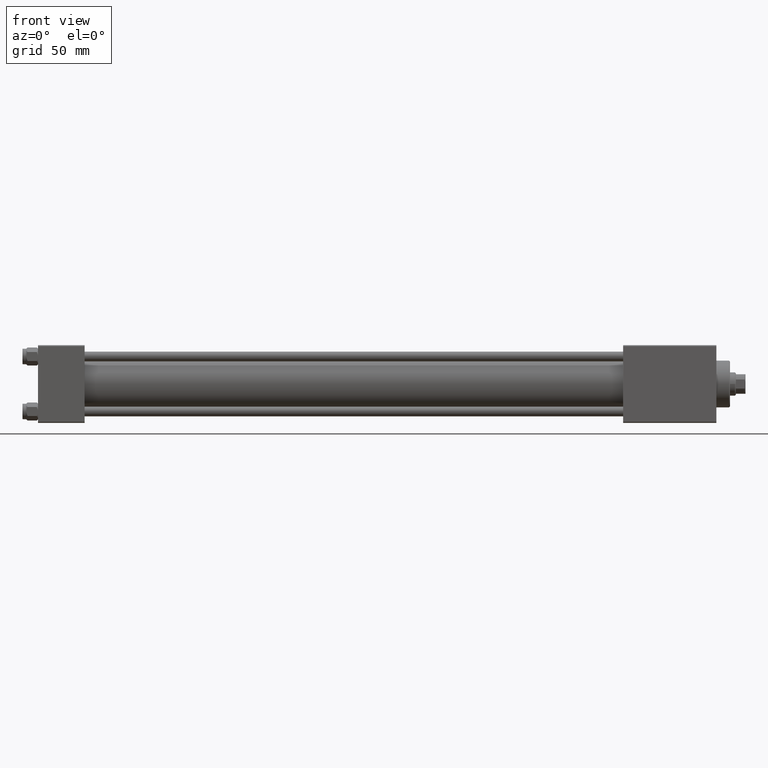
[diagram: clean part render]
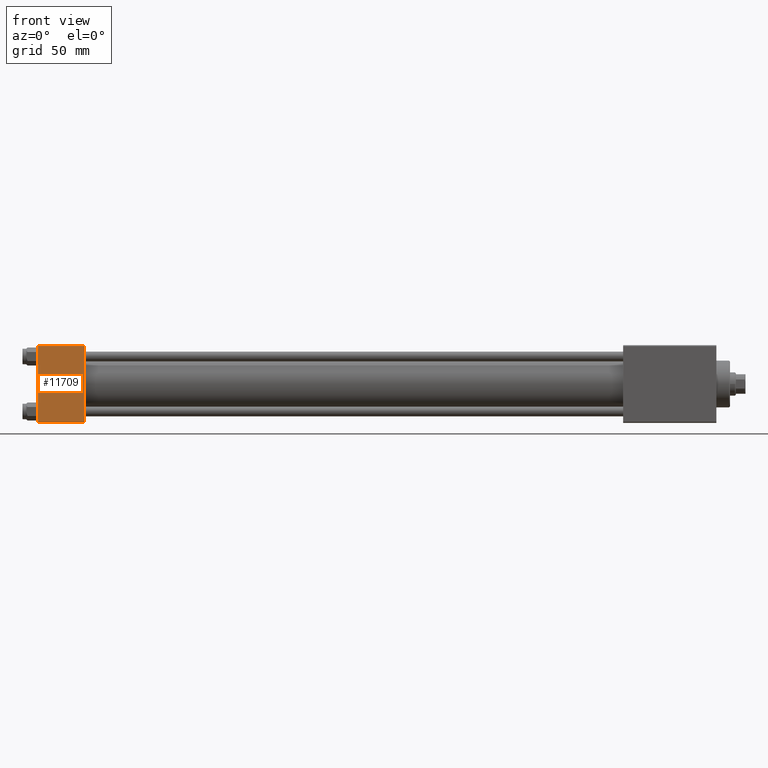
[diagram: same view with one face highlighted and labeled with its STEP entity id]
A machine part, front view. The second image highlights one B-rep face of the part: STEP entity #11709.
In plain terms, the highlighted planar face has unit normal (0, 1, 0).
Its self-contained STEP definition (entity closure, byte-faithful):
#2655 = CARTESIAN_POINT ( 'NONE',  ( 0.000000000000000000, -20.00000000000000355, 19.99999999999998934 ) ) ;
#5874 = VECTOR ( 'NONE', #8103, 1000.000000000000000 ) ;
#5885 = EDGE_CURVE ( 'NONE', #13101, #26573, #36781, .T. ) ;
#7705 = ORIENTED_EDGE ( 'NONE', *, *, #5885, .T. ) ;
#8103 = DIRECTION ( 'NONE',  ( 0.000000000000000000, 8.673617379884036705E-17, -1.000000000000000000 ) ) ;
#8120 = DIRECTION ( 'NONE',  ( -1.000000000000000000, 0.000000000000000000, 0.000000000000000000 ) ) ;
#9207 = EDGE_CURVE ( 'NONE', #30996, #26573, #16213, .T. ) ;
#9969 = CARTESIAN_POINT ( 'NONE',  ( 0.000000000000000000, -20.00000000000000355, 19.49999999999998224 ) ) ;
#11709 = ADVANCED_FACE ( 'NONE', ( #19678 ), #19182, .F. ) ;
#11910 = CARTESIAN_POINT ( 'NONE',  ( 24.00000000000000000, -20.00000000000000355, 19.99999999999998934 ) ) ;
#12934 = LINE ( 'NONE', #42835, #41954 ) ;
#13101 = VERTEX_POINT ( 'NONE', #31307 ) ;
#13832 = DIRECTION ( 'NONE',  ( 0.000000000000000000, 8.673617379884036705E-17, -1.000000000000000000 ) ) ;
#14289 = CARTESIAN_POINT ( 'NONE',  ( 24.00000000000000000, -20.00000000000000000, -19.49999999999999645 ) ) ;
#15867 = DIRECTION ( 'NONE',  ( -0.000000000000000000, 1.000000000000000000, 8.673617379884036705E-17 ) ) ;
#16213 = LINE ( 'NONE', #11910, #5874 ) ;
#17280 = CARTESIAN_POINT ( 'NONE',  ( 24.00000000000000000, -20.00000000000000000, -19.49999999999999645 ) ) ;
#17743 = EDGE_LOOP ( 'NONE', ( #18715, #7705, #37077, #42418 ) ) ;
#18715 = ORIENTED_EDGE ( 'NONE', *, *, #32096, .T. ) ;
#19182 = PLANE ( 'NONE',  #37494 ) ;
#19678 = FACE_OUTER_BOUND ( 'NONE', #17743, .T. ) ;
#23474 = CARTESIAN_POINT ( 'NONE',  ( 24.00000000000000000, -20.00000000000000355, 19.99999999999998934 ) ) ;
#26573 = VERTEX_POINT ( 'NONE', #14289 ) ;
#30996 = VERTEX_POINT ( 'NONE', #35872 ) ;
#31307 = CARTESIAN_POINT ( 'NONE',  ( 0.000000000000000000, -20.00000000000000000, -19.49999999999999645 ) ) ;
#32096 = EDGE_CURVE ( 'NONE', #33207, #13101, #44742, .T. ) ;
#33207 = VERTEX_POINT ( 'NONE', #9969 ) ;
#35832 = VECTOR ( 'NONE', #39584, 1000.000000000000000 ) ;
#35872 = CARTESIAN_POINT ( 'NONE',  ( 24.00000000000000000, -20.00000000000000355, 19.49999999999998224 ) ) ;
#36781 = LINE ( 'NONE', #17280, #35832 ) ;
#37077 = ORIENTED_EDGE ( 'NONE', *, *, #9207, .F. ) ;
#37494 = AXIS2_PLACEMENT_3D ( 'NONE', #23474, #15867, #49835 ) ;
#39584 = DIRECTION ( 'NONE',  ( 1.000000000000000000, 0.000000000000000000, 0.000000000000000000 ) ) ;
#41954 = VECTOR ( 'NONE', #8120, 1000.000000000000000 ) ;
#42209 = EDGE_CURVE ( 'NONE', #30996, #33207, #12934, .T. ) ;
#42418 = ORIENTED_EDGE ( 'NONE', *, *, #42209, .T. ) ;
#42835 = CARTESIAN_POINT ( 'NONE',  ( 24.00000000000000000, -20.00000000000000355, 19.49999999999998224 ) ) ;
#44742 = LINE ( 'NONE', #2655, #49846 ) ;
#49835 = DIRECTION ( 'NONE',  ( 0.000000000000000000, -8.673617379884036705E-17, 1.000000000000000000 ) ) ;
#49846 = VECTOR ( 'NONE', #13832, 1000.000000000000000 ) ;